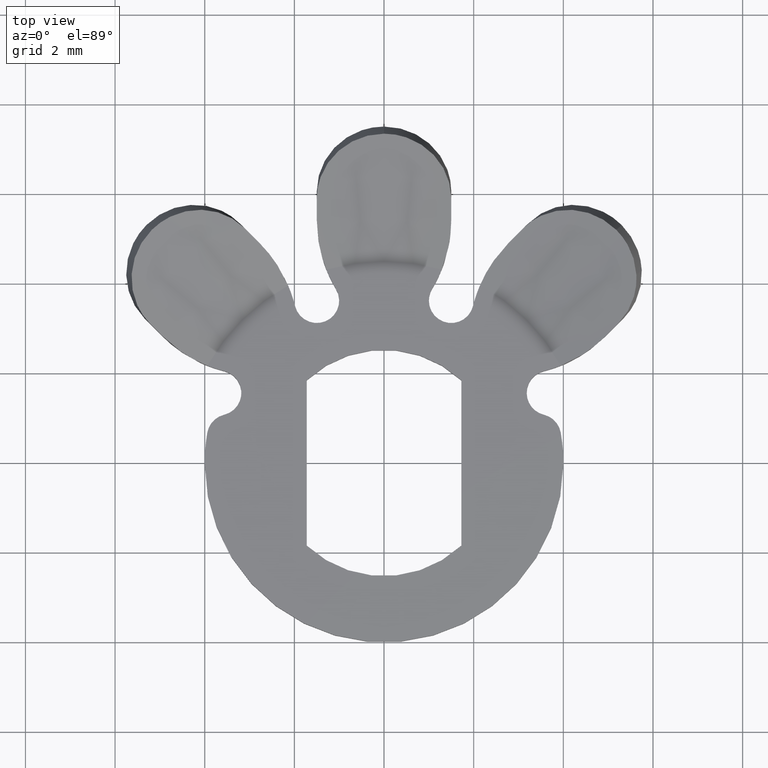
[diagram: clean part render]
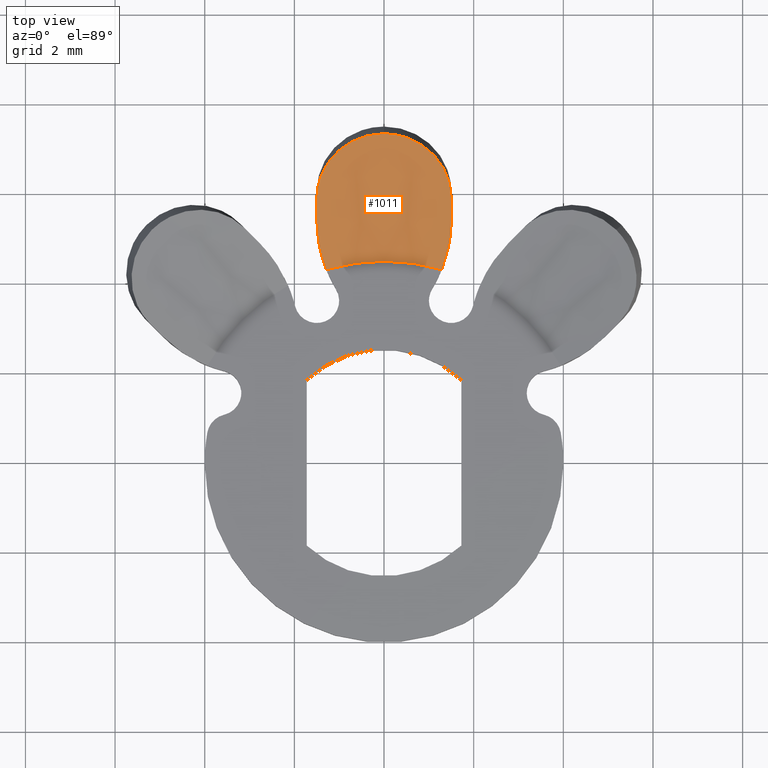
[diagram: same view with one face highlighted and labeled with its STEP entity id]
A machine part, top view. The second image highlights one B-rep face of the part: STEP entity #1011.
In plain terms, the highlighted conical surface has half-angle 70.529 deg.
Its self-contained STEP definition (entity closure, byte-faithful):
#20 = ORIENTED_EDGE ( 'NONE', *, *, #1324, .T. ) ;
#49 = CARTESIAN_POINT ( 'NONE',  ( -1.198657046398550600, 6.772687080920853500, 1.340096568720090800 ) ) ;
#73 = CARTESIAN_POINT ( 'NONE',  ( -1.499999999999999800, 5.893335986250543900, 1.059050702603922600 ) ) ;
#89 = DIRECTION ( 'NONE',  ( 1.000000000000000000, 0.0000000000000000000, 0.0000000000000000000 ) ) ;
#112 = ORIENTED_EDGE ( 'NONE', *, *, #525, .F. ) ;
#128 = VERTEX_POINT ( 'NONE', #1606 ) ;
#131 = VERTEX_POINT ( 'NONE', #1215 ) ;
#186 = CARTESIAN_POINT ( 'NONE',  ( -1.460164743941979800, 6.268091497162052100, 1.184121858734593600 ) ) ;
#216 = CARTESIAN_POINT ( 'NONE',  ( 0.7557562660586505400, 7.145443255641271900, 1.448549850599672800 ) ) ;
#226 = CARTESIAN_POINT ( 'NONE',  ( -1.428497003452698900, 4.668447811457894200, 0.6350538518699909700 ) ) ;
#252 = B_SPLINE_CURVE_WITH_KNOTS ( 'NONE', 3,
 ( #1406, #1309, #1055, #999 ),
 .UNSPECIFIED., .F., .F.,
 ( 4, 4 ),
 ( 0.005788258494800073400, 0.006281698150580640500 ),
 .UNSPECIFIED. ) ;
#262 = ORIENTED_EDGE ( 'NONE', *, *, #286, .T. ) ;
#286 = EDGE_CURVE ( 'NONE', #923, #1193, #691, .T. ) ;
#287 = CIRCLE ( 'NONE', #1655, 4.500000000000000900 ) ;
#288 = CARTESIAN_POINT ( 'NONE',  ( 1.499999999999999800, 5.987071401209042200, 1.091167200868840000 ) ) ;
#303 = CARTESIAN_POINT ( 'NONE',  ( 1.302174168417439700, 6.608139957726926600, 1.290148664791235000 ) ) ;
#305 = EDGE_CURVE ( 'NONE', #830, #1193, #379, .T. ) ;
#316 = CARTESIAN_POINT ( 'NONE',  ( -1.499999999999999800, 5.580555902811522800, 0.9520119775451856300 ) ) ;
#325 = CARTESIAN_POINT ( 'NONE',  ( -1.499999999999999800, 5.893335986250543900, 1.059050702603922600 ) ) ;
#332 = CARTESIAN_POINT ( 'NONE',  ( 1.490279829817143600, 6.079480998455973200, 1.122023847624911800 ) ) ;
#371 = CARTESIAN_POINT ( 'NONE',  ( -1.499999999999999800, 5.039168326351401100, 0.7675269934726731700 ) ) ;
#379 = B_SPLINE_CURVE_WITH_KNOTS ( 'NONE', 3,
 ( #1005, #316, #1276, #469 ),
 .UNSPECIFIED., .F., .F.,
 ( 4, 4 ),
 ( 0.005788258494800075200, 0.006281698150580623100 ),
 .UNSPECIFIED. ) ;
#413 = CARTESIAN_POINT ( 'NONE',  ( 1.423394910366959900, 6.352417319515549100, 1.210537340483334200 ) ) ;
#421 = CARTESIAN_POINT ( 'NONE',  ( 1.452208315747995700, 6.261679813884404300, 1.181562583961581300 ) ) ;
#430 = B_SPLINE_CURVE_WITH_KNOTS ( 'NONE', 3,
 ( #610, #1564, #457, #1091 ),
 .UNSPECIFIED., .F., .F.,
 ( 4, 4 ),
 ( 0.0000000000000000000, 0.001200357094042490100 ),
 .UNSPECIFIED. ) ;
#434 = CARTESIAN_POINT ( 'NONE',  ( 1.348190092301402100, 6.525760829424956300, 1.264857422470551100 ) ) ;
#440 = CARTESIAN_POINT ( 'NONE',  ( 1.193465549973104800, 6.764285321439439600, 1.337366316422131200 ) ) ;
#446 = CARTESIAN_POINT ( 'NONE',  ( -0.09908351601977211100, 7.328427124746191600, 1.500000000000000000 ) ) ;
#447 = CARTESIAN_POINT ( 'NONE',  ( 0.9228960438798194900, 7.037704261373438200, 1.417904810259691000 ) ) ;
#456 = CARTESIAN_POINT ( 'NONE',  ( 0.1981678391953845500, 7.328427124746190700, 1.500000000000000000 ) ) ;
#457 = CARTESIAN_POINT ( 'NONE',  ( 1.499999999999999800, 5.039168326351399300, 0.7675269934726723900 ) ) ;
#463 = CARTESIAN_POINT ( 'NONE',  ( -1.893832288749800200E-016, 7.328427124746189800, 1.500000000000000000 ) ) ;
#469 = CARTESIAN_POINT ( 'NONE',  ( -1.499999999999999800, 5.893335986250543900, 1.059050702603922600 ) ) ;
#470 = CARTESIAN_POINT ( 'NONE',  ( 1.130201890779097400, 6.838336534184274600, 1.359368318076134000 ) ) ;
#478 = CARTESIAN_POINT ( 'NONE',  ( 0.3950718271387765300, 7.289934471117530500, 1.489339449474830900 ) ) ;
#505 = CONICAL_SURFACE ( 'NONE', #1047, 7.328427124746189800, 1.230959417340774700 ) ;
#525 = EDGE_CURVE ( 'NONE', #1026, #131, #287, .T. ) ;
#547 = EDGE_LOOP ( 'NONE', ( #112, #1416, #1108, #20, #262, #1002, #1194 ) ) ;
#587 = CARTESIAN_POINT ( 'NONE',  ( -0.4834018399552480500, 7.254457918565565300, 1.479323875126517400 ) ) ;
#589 = CARTESIAN_POINT ( 'NONE',  ( 1.286350249507952400, 4.312227154915524000, 0.5000000000000004400 ) ) ;
#610 = CARTESIAN_POINT ( 'NONE',  ( 1.286350249507952400, 4.312227154915524000, 0.5000000000000004400 ) ) ;
#618 = CARTESIAN_POINT ( 'NONE',  ( -1.499999999999999800, 5.424095981291627800, 0.8986961879248998000 ) ) ;
#627 = CARTESIAN_POINT ( 'NONE',  ( 0.0000000000000000000, 0.0000000000000000000, 0.5000000000000004400 ) ) ;
#675 = EDGE_CURVE ( 'NONE', #1641, #128, #252, .T. ) ;
#691 = B_SPLINE_CURVE_WITH_KNOTS ( 'NONE', 3,
 ( #1267, #446, #990, #1393, #587, #1527, #734, #1652, #864, #49, #996, #186, #1137, #325 ),
 .UNSPECIFIED., .F., .F.,
 ( 4, 2, 2, 2, 2, 2, 4 ),
 ( 3.736661433483488400E-019, 0.0002930256960387926100, 0.0005860513920775847800, 0.0008790770881163770700, 0.001172102784155169400, 0.001758154176232752400, 0.002344205568310335700 ),
 .UNSPECIFIED. ) ;
#733 = DIRECTION ( 'NONE',  ( -0.0000000000000000000, -0.0000000000000000000, 1.000000000000000000 ) ) ;
#734 = CARTESIAN_POINT ( 'NONE',  ( -0.7510854804574107500, 7.137526085205256400, 1.446253122824218400 ) ) ;
#761 = CARTESIAN_POINT ( 'NONE',  ( -1.499999999999999800, 5.424095981291627800, 0.8986961879248998000 ) ) ;
#767 = DIRECTION ( 'NONE',  ( 1.000000000000000000, 0.0000000000000000000, 0.0000000000000000000 ) ) ;
#830 = VERTEX_POINT ( 'NONE', #761 ) ;
#836 = EDGE_CURVE ( 'NONE', #830, #131, #1059, .T. ) ;
#864 = CARTESIAN_POINT ( 'NONE',  ( -0.9912076673942228400, 6.971915455220591100, 1.398586684724266500 ) ) ;
#871 = CARTESIAN_POINT ( 'NONE',  ( 0.0000000000000000000, 0.0000000000000000000, 1.500000000000000000 ) ) ;
#910 = FACE_OUTER_BOUND ( 'NONE', #547, .T. ) ;
#923 = VERTEX_POINT ( 'NONE', #1438 ) ;
#956 = EDGE_CURVE ( 'NONE', #1026, #1641, #430, .T. ) ;
#990 = CARTESIAN_POINT ( 'NONE',  ( -0.1965064501185777000, 7.319039635548083600, 1.497388716553588200 ) ) ;
#996 = CARTESIAN_POINT ( 'NONE',  ( -1.310402384440981100, 6.612429888961257200, 1.292007132357390100 ) ) ;
#999 = CARTESIAN_POINT ( 'NONE',  ( 1.499999999999999800, 5.893335986250560800, 1.059050702603928400 ) ) ;
#1002 = ORIENTED_EDGE ( 'NONE', *, *, #305, .F. ) ;
#1005 = CARTESIAN_POINT ( 'NONE',  ( -1.499999999999999800, 5.424095981291627800, 0.8986961879248998000 ) ) ;
#1011 = ADVANCED_FACE ( 'NONE', ( #910 ), #505, .F. ) ;
#1026 = VERTEX_POINT ( 'NONE', #589 ) ;
#1047 = AXIS2_PLACEMENT_3D ( 'NONE', #871, #1261, #89 ) ;
#1055 = CARTESIAN_POINT ( 'NONE',  ( 1.499999999999999800, 5.736965738568199100, 1.005473676347642600 ) ) ;
#1059 = B_SPLINE_CURVE_WITH_KNOTS ( 'NONE', 3,
 ( #618, #371, #226, #1297 ),
 .UNSPECIFIED., .F., .F.,
 ( 4, 4 ),
 ( 0.0000000000000000000, 0.001200357094042491900 ),
 .UNSPECIFIED. ) ;
#1084 = CARTESIAN_POINT ( 'NONE',  ( 1.499999999999999800, 5.424095981291626100, 0.8986961879248990300 ) ) ;
#1091 = CARTESIAN_POINT ( 'NONE',  ( 1.499999999999999800, 5.424095981291626100, 0.8986961879248990300 ) ) ;
#1108 = ORIENTED_EDGE ( 'NONE', *, *, #675, .T. ) ;
#1137 = CARTESIAN_POINT ( 'NONE',  ( -1.500000000000000200, 6.080803537071273200, 1.123282575619345900 ) ) ;
#1193 = VERTEX_POINT ( 'NONE', #73 ) ;
#1194 = ORIENTED_EDGE ( 'NONE', *, *, #836, .T. ) ;
#1215 = CARTESIAN_POINT ( 'NONE',  ( -1.286350249507952200, 4.312227154915524000, 0.5000000000000004400 ) ) ;
#1260 = CARTESIAN_POINT ( 'NONE',  ( 1.499999999999999800, 5.893335986250560800, 1.059050702603928400 ) ) ;
#1261 = DIRECTION ( 'NONE',  ( -0.0000000000000000000, -0.0000000000000000000, 1.000000000000000000 ) ) ;
#1267 = CARTESIAN_POINT ( 'NONE',  ( -1.893832288749800200E-016, 7.328427124746189800, 1.500000000000000000 ) ) ;
#1276 = CARTESIAN_POINT ( 'NONE',  ( -1.499999999999999800, 5.736965738568188500, 1.005473676347639100 ) ) ;
#1297 = CARTESIAN_POINT ( 'NONE',  ( -1.286350249507952200, 4.312227154915524000, 0.5000000000000004400 ) ) ;
#1309 = CARTESIAN_POINT ( 'NONE',  ( 1.499999999999999800, 5.580555902811527200, 0.9520119775451869600 ) ) ;
#1324 = EDGE_CURVE ( 'NONE', #128, #923, #1595, .T. ) ;
#1393 = CARTESIAN_POINT ( 'NONE',  ( -0.3881684563587746200, 7.282278762836325500, 1.487113417323717700 ) ) ;
#1406 = CARTESIAN_POINT ( 'NONE',  ( 1.499999999999999800, 5.424095981291626100, 0.8986961879248990300 ) ) ;
#1416 = ORIENTED_EDGE ( 'NONE', *, *, #956, .T. ) ;
#1438 = CARTESIAN_POINT ( 'NONE',  ( -1.893832288749800200E-016, 7.328427124746189800, 1.500000000000000000 ) ) ;
#1527 = CARTESIAN_POINT ( 'NONE',  ( -0.6649723641364285700, 7.181901617366940500, 1.458842579633270000 ) ) ;
#1564 = CARTESIAN_POINT ( 'NONE',  ( 1.428497003452698300, 4.668447811457893300, 0.6350538518699909700 ) ) ;
#1595 = B_SPLINE_CURVE_WITH_KNOTS ( 'NONE', 3,
 ( #1260, #288, #332, #421, #413, #434, #303, #440, #470, #447, #216, #478, #456, #463 ),
 .UNSPECIFIED., .F., .F.,
 ( 4, 2, 2, 2, 2, 2, 4 ),
 ( 0.0000000000000000000, 0.0002930243879203911900, 0.0005860487758407823900, 0.0008790731637611735300, 0.001172097551681564800, 0.001758146327522347500, 0.002344195103363130400 ),
 .UNSPECIFIED. ) ;
#1606 = CARTESIAN_POINT ( 'NONE',  ( 1.499999999999999800, 5.893335986250560800, 1.059050702603928400 ) ) ;
#1641 = VERTEX_POINT ( 'NONE', #1084 ) ;
#1652 = CARTESIAN_POINT ( 'NONE',  ( -0.9140606451224931900, 7.032803903447495800, 1.416205919493406200 ) ) ;
#1655 = AXIS2_PLACEMENT_3D ( 'NONE', #627, #733, #767 ) ;